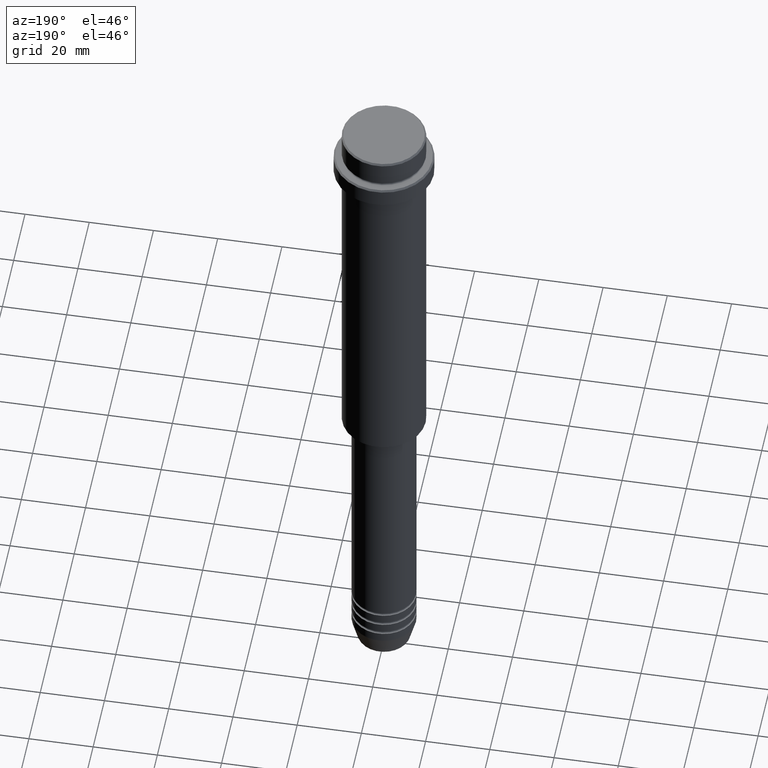
[diagram: clean part render]
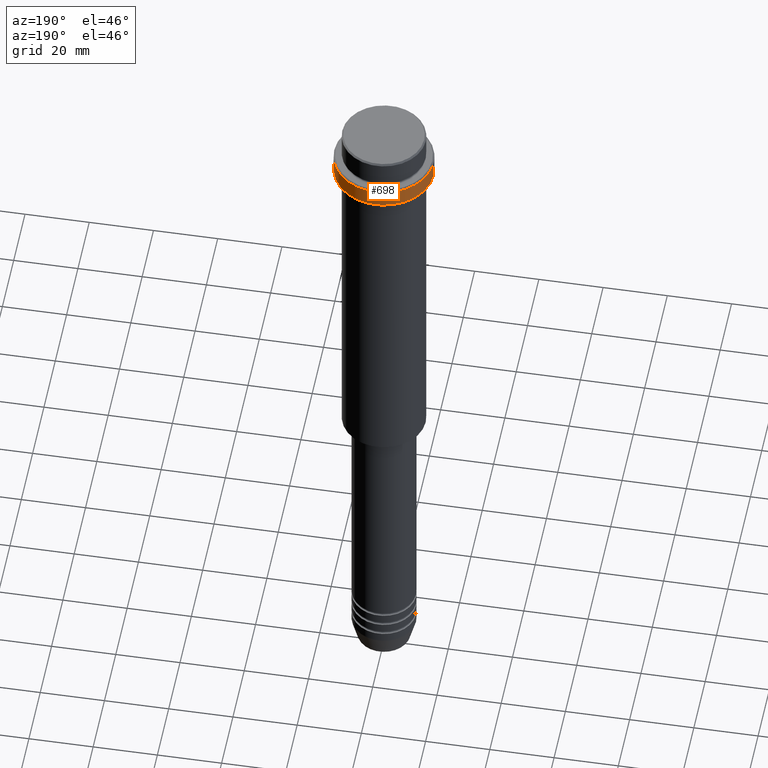
[diagram: same view with one face highlighted and labeled with its STEP entity id]
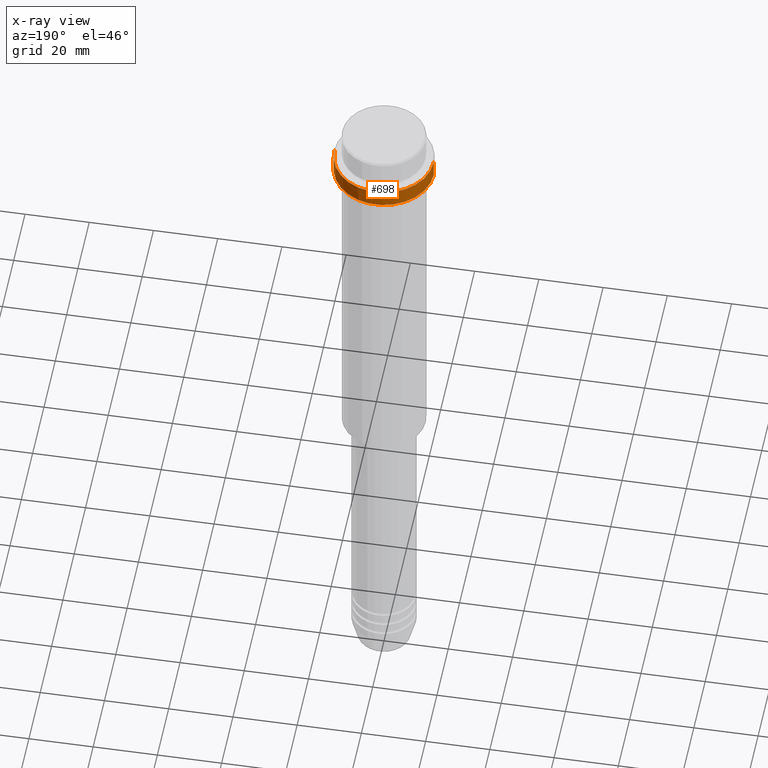
[diagram: x-ray of the same camera — body ghosted, the highlighted face saturated]
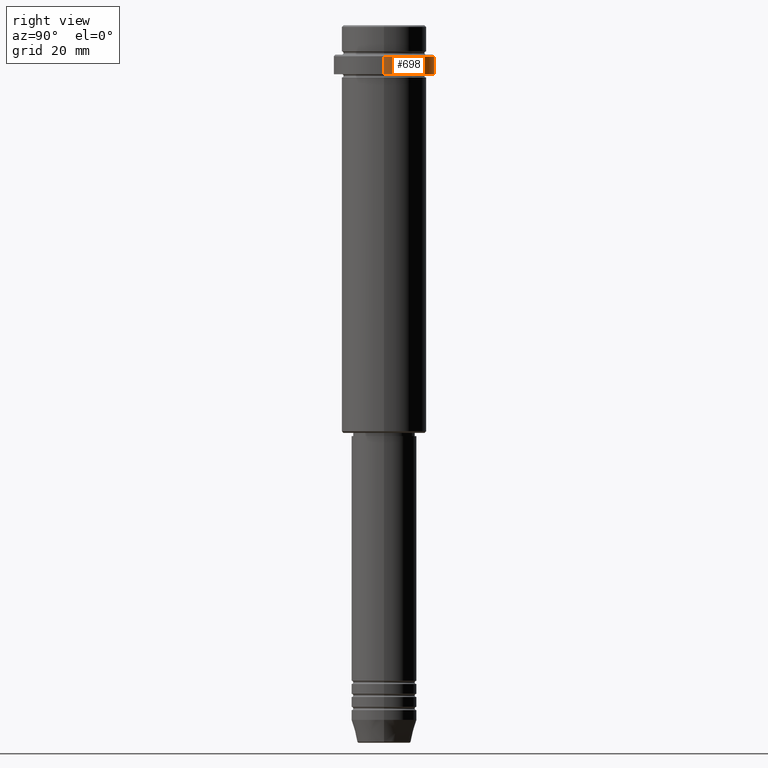
[diagram: same view with one face highlighted and labeled with its STEP entity id]
A machine part, auxiliary view. The second image highlights one B-rep face of the part: STEP entity #698.
The next image is the same camera in x-ray: the body ghosted, the highlighted face saturated — about 0% of this face is hidden behind the body in this view.
A second angle (right view) of the same face is appended — the face is thin or edge-on in the first view.
In plain terms, the highlighted cylindrical surface (partial cylindrical patch) has radius 15.5 mm, axis along (-0, -0, 1).
Its self-contained STEP definition (entity closure, byte-faithful):
#7 = CARTESIAN_POINT ( 'NONE',  ( 0.000000000000000000, 0.000000000000000000, -15.00000000000000178 ) ) ;
#12 = AXIS2_PLACEMENT_3D ( 'NONE', #7, #446, #431 ) ;
#26 = EDGE_CURVE ( 'NONE', #819, #284, #1240, .T. ) ;
#89 = LINE ( 'NONE', #180, #711 ) ;
#111 = DIRECTION ( 'NONE',  ( -0.000000000000000000, -0.000000000000000000, 1.000000000000000000 ) ) ;
#115 = DIRECTION ( 'NONE',  ( -0.000000000000000000, -0.000000000000000000, 1.000000000000000000 ) ) ;
#151 = EDGE_CURVE ( 'NONE', #176, #1011, #89, .T. ) ;
#154 = CARTESIAN_POINT ( 'NONE',  ( -15.50000000000000000, 1.898202538678397557E-15, -15.00000000000000178 ) ) ;
#165 = ORIENTED_EDGE ( 'NONE', *, *, #709, .T. ) ;
#176 = VERTEX_POINT ( 'NONE', #1391 ) ;
#180 = CARTESIAN_POINT ( 'NONE',  ( 15.50000000000000000, 0.000000000000000000, 0.000000000000000000 ) ) ;
#183 = VECTOR ( 'NONE', #369, 1000.000000000000000 ) ;
#197 = ORIENTED_EDGE ( 'NONE', *, *, #26, .T. ) ;
#230 = AXIS2_PLACEMENT_3D ( 'NONE', #1183, #1341, #1231 ) ;
#284 = VERTEX_POINT ( 'NONE', #671 ) ;
#328 = ORIENTED_EDGE ( 'NONE', *, *, #1094, .T. ) ;
#369 = DIRECTION ( 'NONE',  ( -0.000000000000000000, -0.000000000000000000, 1.000000000000000000 ) ) ;
#431 = DIRECTION ( 'NONE',  ( 1.000000000000000000, 0.000000000000000000, 0.000000000000000000 ) ) ;
#446 = DIRECTION ( 'NONE',  ( -0.000000000000000000, -0.000000000000000000, 1.000000000000000000 ) ) ;
#477 = AXIS2_PLACEMENT_3D ( 'NONE', #790, #115, #1008 ) ;
#544 = FACE_OUTER_BOUND ( 'NONE', #837, .T. ) ;
#671 = CARTESIAN_POINT ( 'NONE',  ( -15.50000000000000000, 1.898202538678397557E-15, -9.500000000000014211 ) ) ;
#698 = ADVANCED_FACE ( 'NONE', ( #544 ), #1109, .T. ) ;
#709 = EDGE_CURVE ( 'NONE', #176, #819, #785, .T. ) ;
#711 = VECTOR ( 'NONE', #111, 1000.000000000000000 ) ;
#785 = CIRCLE ( 'NONE', #12, 15.50000000000000000 ) ;
#790 = CARTESIAN_POINT ( 'NONE',  ( 0.000000000000000000, 0.000000000000000000, 0.000000000000000000 ) ) ;
#819 = VERTEX_POINT ( 'NONE', #154 ) ;
#837 = EDGE_LOOP ( 'NONE', ( #165, #197, #328, #895 ) ) ;
#857 = CIRCLE ( 'NONE', #230, 15.50000000000000000 ) ;
#895 = ORIENTED_EDGE ( 'NONE', *, *, #151, .F. ) ;
#1008 = DIRECTION ( 'NONE',  ( 1.000000000000000000, 0.000000000000000000, 0.000000000000000000 ) ) ;
#1011 = VERTEX_POINT ( 'NONE', #1276 ) ;
#1094 = EDGE_CURVE ( 'NONE', #284, #1011, #857, .T. ) ;
#1109 = CYLINDRICAL_SURFACE ( 'NONE', #477, 15.50000000000000000 ) ;
#1183 = CARTESIAN_POINT ( 'NONE',  ( 0.000000000000000000, 0.000000000000000000, -9.500000000000014211 ) ) ;
#1231 = DIRECTION ( 'NONE',  ( 1.000000000000000000, 0.000000000000000000, 0.000000000000000000 ) ) ;
#1240 = LINE ( 'NONE', #1386, #183 ) ;
#1276 = CARTESIAN_POINT ( 'NONE',  ( 15.50000000000000000, 0.000000000000000000, -9.500000000000014211 ) ) ;
#1341 = DIRECTION ( 'NONE',  ( 0.000000000000000000, 0.000000000000000000, -1.000000000000000000 ) ) ;
#1386 = CARTESIAN_POINT ( 'NONE',  ( -15.50000000000000000, 1.898202538678397557E-15, 0.000000000000000000 ) ) ;
#1391 = CARTESIAN_POINT ( 'NONE',  ( 15.50000000000000000, 0.000000000000000000, -15.00000000000000178 ) ) ;